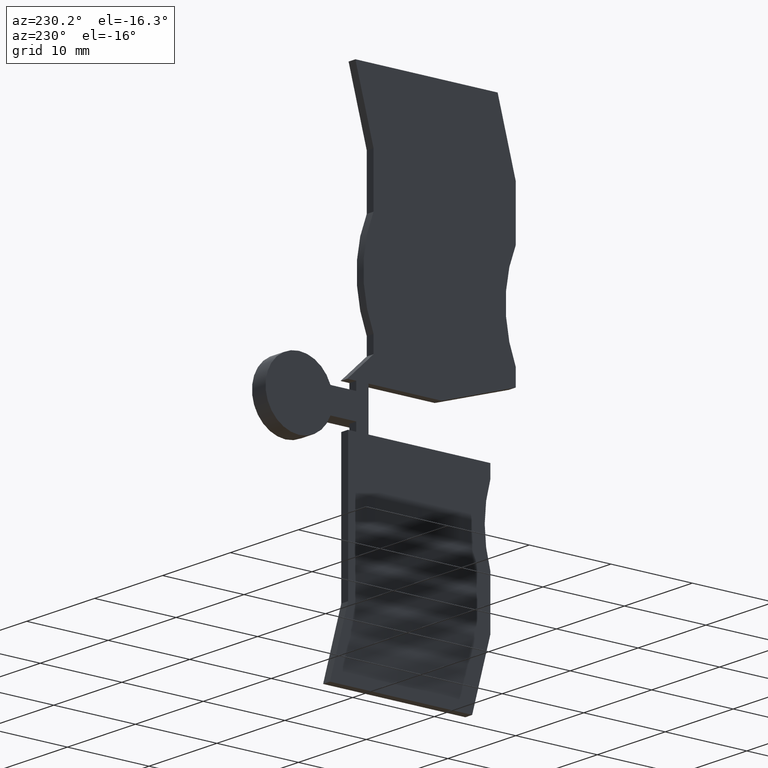
[diagram: clean part render]
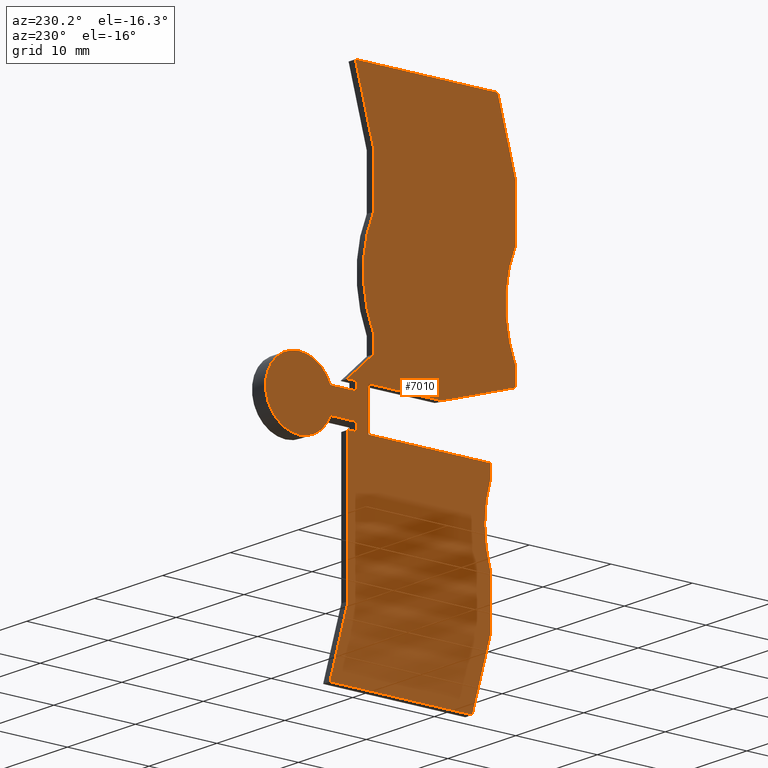
[diagram: same view with one face highlighted and labeled with its STEP entity id]
A machine part, auxiliary view. The second image highlights one B-rep face of the part: STEP entity #7010.
In plain terms, the highlighted planar face has unit normal (-1, 0, -0).
Its self-contained STEP definition (entity closure, byte-faithful):
#120=CARTESIAN_POINT('',(27.7926050903251,-19.4833568228386,
4.70000000003257));
#130=VERTEX_POINT('',#120);
#290=CARTESIAN_POINT('',(27.7926050903252,-28.4833568228446,
4.70000000003257));
#300=VERTEX_POINT('',#290);
#330=CARTESIAN_POINT('',(42.1016931115784,-23.9833568228416,
4.70000000003257));
#340=DIRECTION('',(0.,0.,1.));
#350=DIRECTION('',(-1.,1.22464679914735E-16,0.));
#360=AXIS2_PLACEMENT_3D('',#330,#340,#350);
#370=CIRCLE('',#360,15.);
#380=EDGE_CURVE('',#130,#300,#370,.T.);
#590=CARTESIAN_POINT('',(27.7926050903252,-34.7178123662187,
4.70000000003257));
#600=VERTEX_POINT('',#590);
#650=CARTESIAN_POINT('',(27.7926050903252,6.334125,4.70000000003257));
#660=DIRECTION('',(-1.22464679914735E-16,-1.,0.));
#670=VECTOR('',#660,1.);
#680=LINE('',#650,#670);
#690=EDGE_CURVE('',#300,#600,#680,.T.);
#2430=CARTESIAN_POINT('',(12.8426048224249,-12.8833568228378,
4.70000000003257));
#2440=VERTEX_POINT('',#2430);
#2470=CARTESIAN_POINT('',(10.836572,-12.8833568228378,4.70000000003257))
;
#2480=DIRECTION('',(-1.,0.,0.));
#2490=VECTOR('',#2480,1.);
#2500=LINE('',#2470,#2490);
#2510=CARTESIAN_POINT('',(21.8121253777865,-12.8833568228378,
4.70000000003257));
#2520=VERTEX_POINT('',#2510);
#2530=EDGE_CURVE('',#2520,#2440,#2500,.T.);
#2800=CARTESIAN_POINT('',(27.7926050903251,-17.8833568228378,
4.70000000003257));
#2810=VERTEX_POINT('',#2800);
#2860=CARTESIAN_POINT('',(10.836572,-17.8833568228378,4.70000000003257))
;
#2870=DIRECTION('',(1.,-1.22464679914735E-16,0.));
#2880=VECTOR('',#2870,1.);
#2890=LINE('',#2860,#2880);
#2900=CARTESIAN_POINT('',(12.8426048224249,-17.8833568228378,
4.70000000003257));
#2910=VERTEX_POINT('',#2900);
#2920=EDGE_CURVE('',#2910,#2810,#2890,.T.);
#3240=CARTESIAN_POINT('',(10.836572,-16.4983885066354,4.70000000003257))
;
#3250=DIRECTION('',(-0.949806217012117,-0.312838856482264,0.));
#3260=VECTOR('',#3250,1.);
#3270=LINE('',#3240,#3260);
#3280=CARTESIAN_POINT('',(30.9174891315682,-9.8843118244286,
4.70000000003257));
#3290=VERTEX_POINT('',#3280);
#3300=EDGE_CURVE('',#3290,#2520,#3270,.T.);
#3680=CARTESIAN_POINT('',(10.3426050903255,-34.7178123662171,
4.70000000003257));
#3690=VERTEX_POINT('',#3680);
#3720=CARTESIAN_POINT('',(21.3424385553537,6.334125,4.70000000003257));
#3730=DIRECTION('',(0.258819045102899,0.965925826288967,0.));
#3740=VECTOR('',#3730,1.);
#3750=LINE('',#3720,#3740);
#3760=CARTESIAN_POINT('',(8.11446166854492,-43.0333568228397,
4.70000000003257));
#3770=VERTEX_POINT('',#3760);
#3780=EDGE_CURVE('',#3770,#3690,#3750,.T.);
#4020=CARTESIAN_POINT('',(30.9174891315682,6.334125,4.70000000003257));
#4030=DIRECTION('',(0.,-1.,0.));
#4040=VECTOR('',#4030,1.);
#4050=LINE('',#4020,#4040);
#4060=CARTESIAN_POINT('',(30.9174891315682,-7.88335682284202,
4.70000000003257));
#4070=VERTEX_POINT('',#4060);
#4080=EDGE_CURVE('',#4070,#3290,#4050,.T.);
#5130=CARTESIAN_POINT('',(30.9174891315669,4.11664317716097,
4.70000000003257));
#5140=VERTEX_POINT('',#5130);
#5190=CARTESIAN_POINT('',(44.6652162164344,-1.88335682283906,
4.70000000003257));
#5200=DIRECTION('',(0.,0.,1.));
#5210=DIRECTION('',(1.,0.,0.));
#5220=AXIS2_PLACEMENT_3D('',#5190,#5200,#5210);
#5230=CIRCLE('',#5220,15.);
#5240=EDGE_CURVE('',#5140,#4070,#5230,.T.);
#5360=CARTESIAN_POINT('',(24.0724116007493,9.56768417716366,
4.70000000003257));
#5370=DIRECTION('',(0.,0.,1.));
#5380=DIRECTION('',(1.,0.,0.));
#5390=AXIS2_PLACEMENT_3D('',#5360,#5370,#5380);
#5400=PLANE('',#5390);
#5410=ORIENTED_EDGE('',*,*,#2530,.F.);
#5420=CARTESIAN_POINT('',(12.8426048224249,3.45076817715801,
4.70000000003257));
#5430=DIRECTION('',(0.,-1.,0.));
#5440=VECTOR('',#5430,1.);
#5450=LINE('',#5420,#5440);
#5460=EDGE_CURVE('',#2440,#2910,#5450,.T.);
#5470=ORIENTED_EDGE('',*,*,#5460,.F.);
#5480=ORIENTED_EDGE('',*,*,#2920,.F.);
#5490=CARTESIAN_POINT('',(27.7926050903252,6.334125,4.70000000003257));
#5500=DIRECTION('',(-1.22464679914735E-16,-1.,0.));
#5510=VECTOR('',#5500,1.);
#5520=LINE('',#5490,#5510);
#5530=EDGE_CURVE('',#2810,#130,#5520,.T.);
#5540=ORIENTED_EDGE('',*,*,#5530,.F.);
#5550=ORIENTED_EDGE('',*,*,#380,.F.);
#5560=ORIENTED_EDGE('',*,*,#690,.F.);
#5570=CARTESIAN_POINT('',(38.7924385553539,6.334125,4.70000000003257));
#5580=DIRECTION('',(-0.258819045102903,-0.965925826288966,0.));
#5590=VECTOR('',#5580,1.);
#5600=LINE('',#5570,#5590);
#5610=CARTESIAN_POINT('',(25.5644616685449,-43.0333568228397,
4.70000000003257));
#5620=VERTEX_POINT('',#5610);
#5630=EDGE_CURVE('',#600,#5620,#5600,.T.);
#5640=ORIENTED_EDGE('',*,*,#5630,.F.);
#5650=CARTESIAN_POINT('',(10.836572,-43.0333568228397,4.70000000003257))
;
#5660=DIRECTION('',(-1.,1.22464679914735E-16,0.));
#5670=VECTOR('',#5660,1.);
#5680=LINE('',#5650,#5670);
#5690=EDGE_CURVE('',#5620,#3770,#5680,.T.);
#5700=ORIENTED_EDGE('',*,*,#5690,.F.);
#5710=ORIENTED_EDGE('',*,*,#3780,.F.);
#5720=CARTESIAN_POINT('',(10.3426050903255,6.334125,4.70000000003257));
#5730=DIRECTION('',(1.83847064084899E-17,1.,0.));
#5740=VECTOR('',#5730,1.);
#5750=LINE('',#5720,#5740);
#5760=CARTESIAN_POINT('',(10.3426050903255,-17.8833568228378,
4.70000000003257));
#5770=VERTEX_POINT('',#5760);
#5780=EDGE_CURVE('',#3690,#5770,#5750,.T.);
#5790=ORIENTED_EDGE('',*,*,#5780,.F.);
#5800=CARTESIAN_POINT('',(10.836572,-17.8833568228378,4.70000000003257))
;
#5810=DIRECTION('',(1.,-1.22464679914735E-16,0.));
#5820=VECTOR('',#5810,1.);
#5830=LINE('',#5800,#5820);
#5840=CARTESIAN_POINT('',(11.3426048224249,-17.8833568228378,
4.70000000003257));
#5850=VERTEX_POINT('',#5840);
#5860=EDGE_CURVE('',#5770,#5850,#5830,.T.);
#5870=ORIENTED_EDGE('',*,*,#5860,.F.);
#5880=CARTESIAN_POINT('',(11.3426048224249,3.45076817715801,
4.70000000003257));
#5890=DIRECTION('',(0.,1.,0.));
#5900=VECTOR('',#5890,1.);
#5910=LINE('',#5880,#5900);
#5920=CARTESIAN_POINT('',(11.3426048224249,-16.8833568228378,
4.70000000003257));
#5930=VERTEX_POINT('',#5920);
#5940=EDGE_CURVE('',#5850,#5930,#5910,.T.);
#5950=ORIENTED_EDGE('',*,*,#5940,.F.);
#5960=CARTESIAN_POINT('',(10.836572,-16.8833568228378,4.70000000003257))
;
#5970=DIRECTION('',(1.,0.,0.));
#5980=VECTOR('',#5970,1.);
#5990=LINE('',#5960,#5980);
#6000=CARTESIAN_POINT('',(8.18518711016459,-16.8833568228378,
4.70000000003257));
#6010=VERTEX_POINT('',#6000);
#6020=EDGE_CURVE('',#6010,#5930,#5990,.T.);
#6030=ORIENTED_EDGE('',*,*,#6020,.T.);
#6040=CARTESIAN_POINT('',(4.34260491212486,-15.3833568228378,
4.70000000003257));
#6050=DIRECTION('',(0.,0.,1.));
#6060=DIRECTION('',(6.12323399573677E-17,-1.,0.));
#6070=AXIS2_PLACEMENT_3D('',#6040,#6050,#6060);
#6080=CIRCLE('',#6070,4.12497732705185);
#6090=CARTESIAN_POINT('',(8.18518711016458,-13.8833568228378,
4.70000000003257));
#6100=VERTEX_POINT('',#6090);
#6110=EDGE_CURVE('',#6100,#6010,#6080,.T.);
#6120=ORIENTED_EDGE('',*,*,#6110,.T.);
#6130=CARTESIAN_POINT('',(10.836572,-13.8833568228385,4.70000000003257))
;
#6140=DIRECTION('',(-1.,0.,0.));
#6150=VECTOR('',#6140,1.);
#6160=LINE('',#6130,#6150);
#6170=CARTESIAN_POINT('',(11.3426048224249,-13.8833568228378,
4.70000000003257));
#6180=VERTEX_POINT('',#6170);
#6190=EDGE_CURVE('',#6180,#6100,#6160,.T.);
#6200=ORIENTED_EDGE('',*,*,#6190,.T.);
#6210=CARTESIAN_POINT('',(11.3426048224249,-12.8833568228378,
4.70000000003257));
#6220=VERTEX_POINT('',#6210);
#6230=EDGE_CURVE('',#6180,#6220,#5910,.T.);
#6240=ORIENTED_EDGE('',*,*,#6230,.F.);
#6250=CARTESIAN_POINT('',(10.836572,-12.8833568228378,4.70000000003257))
;
#6260=DIRECTION('',(-1.,0.,0.));
#6270=VECTOR('',#6260,1.);
#6280=LINE('',#6250,#6270);
#6290=CARTESIAN_POINT('',(10.2516342753797,-12.8833568228378,
4.70000000003257));
#6300=VERTEX_POINT('',#6290);
#6310=EDGE_CURVE('',#6220,#6300,#6280,.T.);
#6320=ORIENTED_EDGE('',*,*,#6310,.F.);
#6330=CARTESIAN_POINT('',(10.836572,-12.3376813332395,4.70000000003257))
;
#6340=DIRECTION('',(0.731221353984691,0.682140257921196,0.));
#6350=VECTOR('',#6340,1.);
#6360=LINE('',#6330,#6350);
#6370=CARTESIAN_POINT('',(13.4674891329061,-9.88335682284312,
4.70000000003257));
#6380=VERTEX_POINT('',#6370);
#6390=EDGE_CURVE('',#6300,#6380,#6360,.T.);
#6400=ORIENTED_EDGE('',*,*,#6390,.F.);
#6410=CARTESIAN_POINT('',(13.4674891329061,6.334125,4.70000000003257));
#6420=DIRECTION('',(0.,1.,0.));
#6430=VECTOR('',#6420,1.);
#6440=LINE('',#6410,#6430);
#6450=CARTESIAN_POINT('',(13.4674891329061,-7.88335682284652,
4.70000000003257));
#6460=VERTEX_POINT('',#6450);
#6470=EDGE_CURVE('',#6380,#6460,#6440,.T.);
#6480=ORIENTED_EDGE('',*,*,#6470,.F.);
#6490=CARTESIAN_POINT('',(27.2152162177738,-1.88335682284693,
4.70000000003257));
#6500=DIRECTION('',(0.,0.,1.));
#6510=DIRECTION('',(1.,0.,0.));
#6520=AXIS2_PLACEMENT_3D('',#6490,#6500,#6510);
#6530=CIRCLE('',#6520,15.);
#6540=CARTESIAN_POINT('',(13.4674891329061,4.11664317715268,
4.70000000003257));
#6550=VERTEX_POINT('',#6540);
#6560=EDGE_CURVE('',#6550,#6460,#6530,.T.);
#6570=ORIENTED_EDGE('',*,*,#6560,.T.);
#6580=CARTESIAN_POINT('',(13.4674891329061,6.334125,4.70000000003257));
#6590=DIRECTION('',(0.,1.,0.));
#6600=VECTOR('',#6590,1.);
#6610=LINE('',#6580,#6600);
#6620=CARTESIAN_POINT('',(13.4674891329061,10.3510987155344,
4.70000000003257));
#6630=VERTEX_POINT('',#6620);
#6640=EDGE_CURVE('',#6550,#6630,#6610,.T.);
#6650=ORIENTED_EDGE('',*,*,#6640,.F.);
#6660=CARTESIAN_POINT('',(14.5438339960023,6.334125,4.70000000003257));
#6670=DIRECTION('',(-0.258819045102908,0.965925826288965,0.));
#6680=VECTOR('',#6670,1.);
#6690=LINE('',#6660,#6680);
#6700=CARTESIAN_POINT('',(11.2393457097867,18.6666431771532,
4.70000000003257));
#6710=VERTEX_POINT('',#6700);
#6720=EDGE_CURVE('',#6630,#6710,#6690,.T.);
#6730=ORIENTED_EDGE('',*,*,#6720,.F.);
#6740=CARTESIAN_POINT('',(10.836572,18.6666431771532,4.70000000003257));
#6750=DIRECTION('',(1.,-2.08170844255253E-16,0.));
#6760=VECTOR('',#6750,1.);
#6770=LINE('',#6740,#6760);
#6780=CARTESIAN_POINT('',(28.6893457097867,18.6666431771532,
4.70000000003257));
#6790=VERTEX_POINT('',#6780);
#6800=EDGE_CURVE('',#6710,#6790,#6770,.T.);
#6810=ORIENTED_EDGE('',*,*,#6800,.F.);
#6820=CARTESIAN_POINT('',(31.9938339960023,6.334125,4.70000000003257));
#6830=DIRECTION('',(0.258819045102903,-0.965925826288966,0.));
#6840=VECTOR('',#6830,1.);
#6850=LINE('',#6820,#6840);
#6860=CARTESIAN_POINT('',(30.9174891315669,10.3510987205322,
4.70000000003257));
#6870=VERTEX_POINT('',#6860);
#6880=EDGE_CURVE('',#6790,#6870,#6850,.T.);
#6890=ORIENTED_EDGE('',*,*,#6880,.F.);
#6900=CARTESIAN_POINT('',(30.9174891315669,6.334125,4.70000000003257));
#6910=DIRECTION('',(2.77555756156289E-17,-1.,0.));
#6920=VECTOR('',#6910,1.);
#6930=LINE('',#6900,#6920);
#6940=EDGE_CURVE('',#6870,#5140,#6930,.T.);
#6950=ORIENTED_EDGE('',*,*,#6940,.F.);
#6960=ORIENTED_EDGE('',*,*,#5240,.F.);
#6970=ORIENTED_EDGE('',*,*,#4080,.F.);
#6980=ORIENTED_EDGE('',*,*,#3300,.F.);
#6990=EDGE_LOOP('',(#6980,#6970,#6960,#6950,#6890,#6810,#6730,#6650,
#6570,#6480,#6400,#6320,#6240,#6200,#6120,#6030,#5950,#5870,#5790,#5710,
#5700,#5640,#5560,#5550,#5540,#5480,#5470,#5410));
#7000=FACE_OUTER_BOUND('',#6990,.T.);
#7010=ADVANCED_FACE('',(#7000),#5400,.T.);